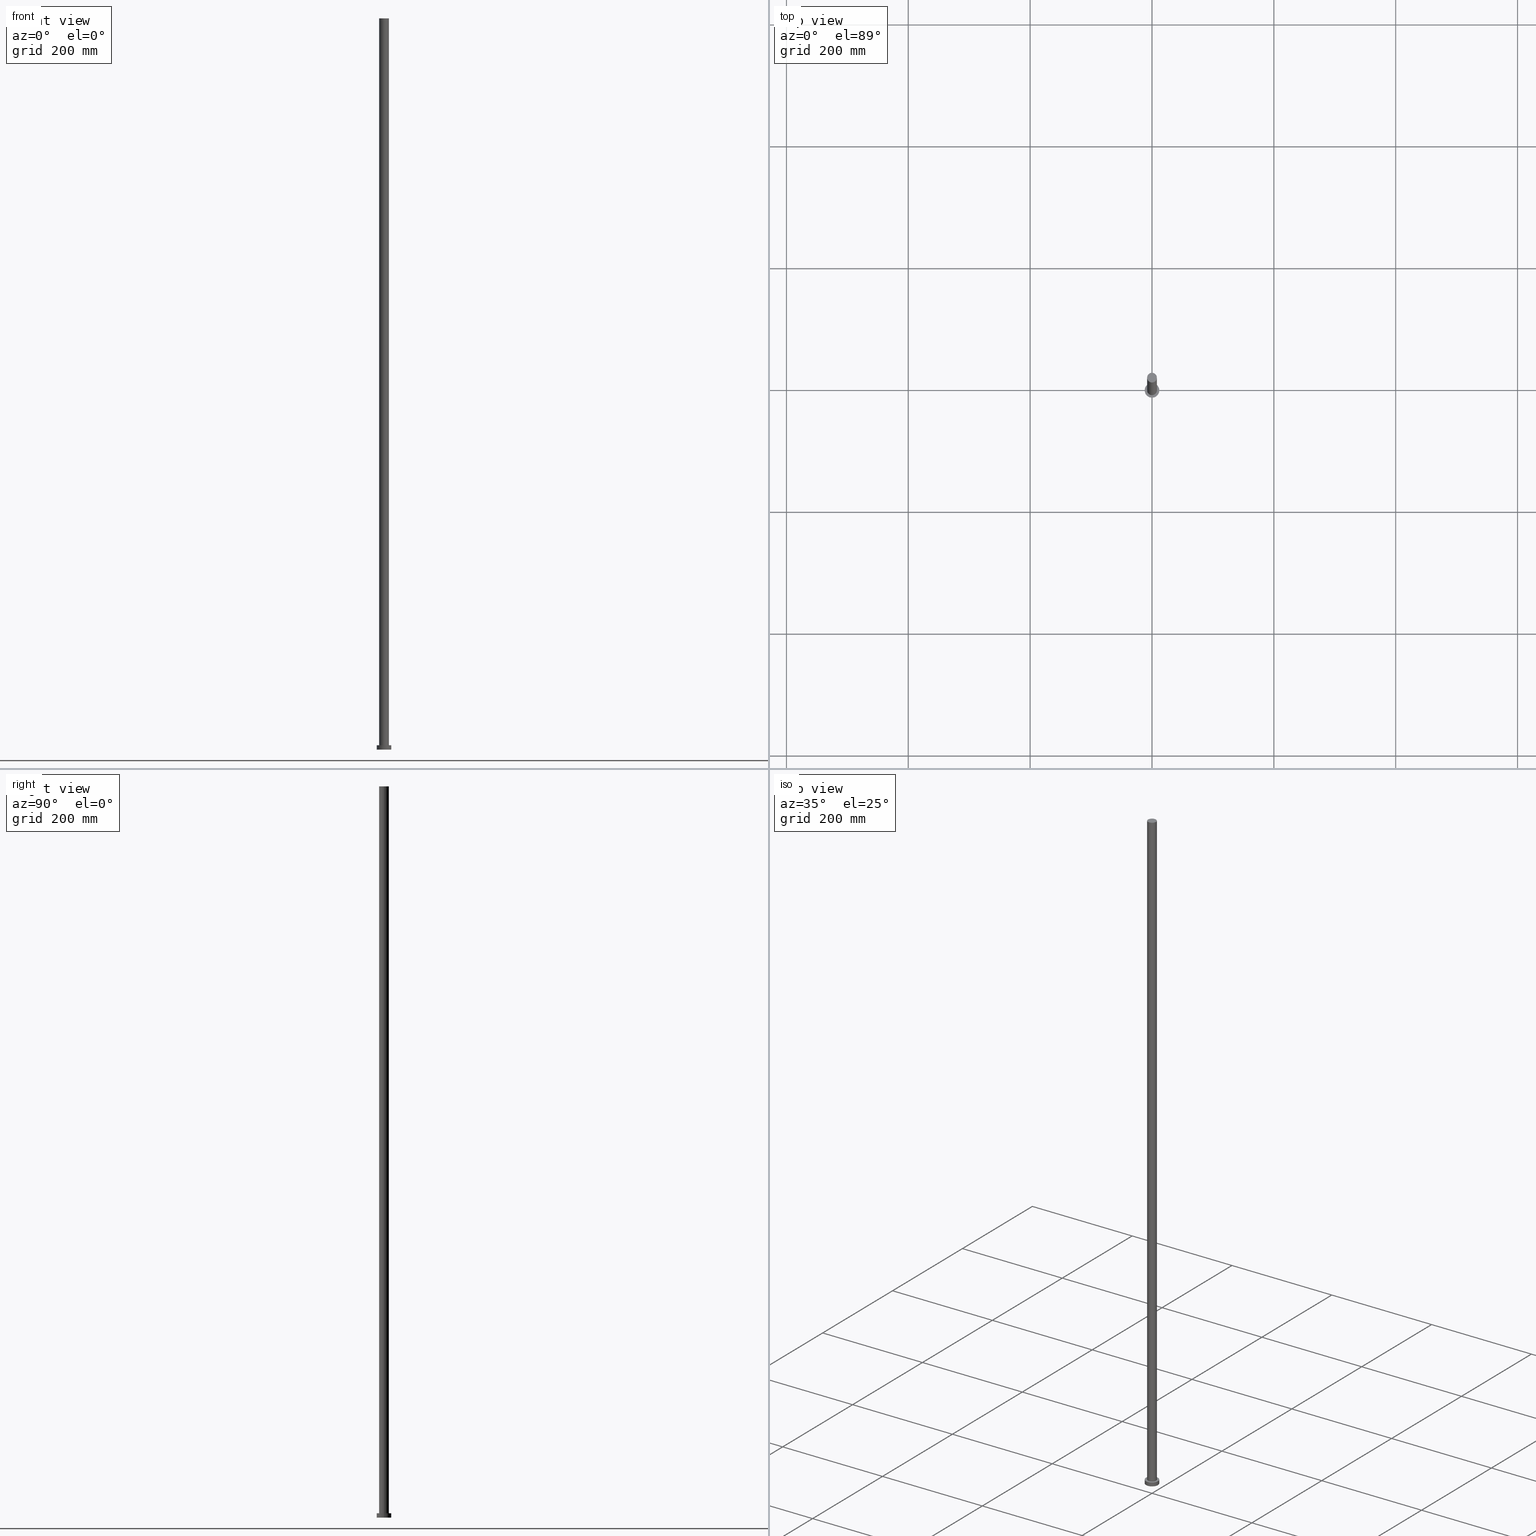
[diagram: canonical four-view strip — front | top / right | iso, engineering-drawing reading convention]
A machine part, canonical four-view strip (front | top / right | iso — engineering-drawing reading convention). The complete STEP part file that produces these views, byte-faithful:
ISO-10303-21;
HEADER;
FILE_DESCRIPTION (( 'STEP AP203' ),
    '1' );
FILE_NAME ('0993.STEP',
    '2023-02-13T09:42:33',
    ( '' ),
    ( '' ),
    'SwSTEP 2.0',
    'SolidWorks 2019',
    '' );
FILE_SCHEMA (( 'CONFIG_CONTROL_DESIGN' ));
ENDSEC;

DATA;
#1 = CARTESIAN_POINT ( 'NONE',  ( -8.000000000000000000, 0.000000000000000000, 1200.000000000000000 ) ) ;
#2 = EDGE_LOOP ( 'NONE', ( #215, #232, #54, #81 ) ) ;
#3 = DIRECTION ( 'NONE',  ( -0.000000000000000000, -0.000000000000000000, -1.000000000000000000 ) ) ;
#4 = ORIENTED_EDGE ( 'NONE', *, *, #116, .T. ) ;
#5 = CIRCLE ( 'NONE', #88, 8.000000000000000000 ) ;
#6 = APPROVAL_STATUS ( 'not_yet_approved' ) ;
#7 = DIRECTION ( 'NONE',  ( 1.000000000000000000, 0.000000000000000000, 0.000000000000000000 ) ) ;
#8 = DATE_AND_TIME ( #162, #114 ) ;
#9 = CYLINDRICAL_SURFACE ( 'NONE', #239, 8.000000000000000000 ) ;
#10 = ORIENTED_EDGE ( 'NONE', *, *, #216, .F. ) ;
#11 = CALENDAR_DATE ( 2023, 13, 2 ) ;
#12 = DATE_TIME_ROLE ( 'classification_date' ) ;
#13 = DIRECTION ( 'NONE',  ( 0.000000000000000000, 0.000000000000000000, 1.000000000000000000 ) ) ;
#14 = DATE_AND_TIME ( #11, #167 ) ;
#15 = CLOSED_SHELL ( 'NONE', ( #24, #78, #50, #38, #107, #119, #197 ) ) ;
#16 = CC_DESIGN_APPROVAL ( #93, ( #234 ) ) ;
#17 = DIRECTION ( 'NONE',  ( 0.000000000000000000, 0.000000000000000000, 1.000000000000000000 ) ) ;
#18 = CYLINDRICAL_SURFACE ( 'NONE', #84, 12.00000000000000178 ) ;
#19 = ORIENTED_EDGE ( 'NONE', *, *, #179, .F. ) ;
#20 = FACE_OUTER_BOUND ( 'NONE', #154, .T. ) ;
#21 = VERTEX_POINT ( 'NONE', #220 ) ;
#22 = DESIGN_CONTEXT ( 'detailed design', #238, 'design' ) ;
#23 = ORIENTED_EDGE ( 'NONE', *, *, #113, .T. ) ;
#24 = ADVANCED_FACE ( 'NONE', ( #176 ), #52, .T. ) ;
#25 = AXIS2_PLACEMENT_3D ( 'NONE', #190, #148, #224 ) ;
#26 = ORIENTED_EDGE ( 'NONE', *, *, #104, .T. ) ;
#27 = EDGE_CURVE ( 'NONE', #65, #172, #160, .T. ) ;
#28 = DIRECTION ( 'NONE',  ( 0.000000000000000000, 0.000000000000000000, 1.000000000000000000 ) ) ;
#29 = AXIS2_PLACEMENT_3D ( 'NONE', #199, #3, #86 ) ;
#30 = PERSON_AND_ORGANIZATION ( #123, #229 ) ;
#31 = DIRECTION ( 'NONE',  ( 1.000000000000000000, 0.000000000000000000, 0.000000000000000000 ) ) ;
#32 = LINE ( 'NONE', #126, #120 ) ;
#33 = MANIFOLD_SOLID_BREP ( 'P�idat vysunut�m3', #15 ) ;
#34 = FACE_OUTER_BOUND ( 'NONE', #195, .T. ) ;
#35 = DATE_TIME_ROLE ( 'creation_date' ) ;
#36 = LINE ( 'NONE', #110, #252 ) ;
#37 = DIRECTION ( 'NONE',  ( 1.000000000000000000, 0.000000000000000000, 0.000000000000000000 ) ) ;
#38 = ADVANCED_FACE ( 'NONE', ( #70, #159 ), #144, .T. ) ;
#39 = VECTOR ( 'NONE', #204, 1000.000000000000000 ) ;
#40 = PRODUCT_DEFINITION_FORMATION_WITH_SPECIFIED_SOURCE ( 'LIBOVOLN�', '', #165, .NOT_KNOWN. ) ;
#41 = DIRECTION ( 'NONE',  ( 1.000000000000000000, 0.000000000000000000, 0.000000000000000000 ) ) ;
#42 = CC_DESIGN_APPROVAL ( #235, ( #40 ) ) ;
#43 = VERTEX_POINT ( 'NONE', #185 ) ;
#44 = CC_DESIGN_SECURITY_CLASSIFICATION ( #49, ( #40 ) ) ;
#45 = EDGE_LOOP ( 'NONE', ( #241, #175, #218, #198 ) ) ;
#46 = ORIENTED_EDGE ( 'NONE', *, *, #27, .F. ) ;
#47 = DIRECTION ( 'NONE',  ( 0.000000000000000000, 0.000000000000000000, 1.000000000000000000 ) ) ;
#48 = AXIS2_PLACEMENT_3D ( 'NONE', #91, #97, #248 ) ;
#49 = SECURITY_CLASSIFICATION ( '', '', #245 ) ;
#50 = ADVANCED_FACE ( 'NONE', ( #191 ), #18, .T. ) ;
#51 = MECHANICAL_CONTEXT ( 'NONE', #102, 'mechanical' ) ;
#52 = CYLINDRICAL_SURFACE ( 'NONE', #227, 8.000000000000000000 ) ;
#53 = CARTESIAN_POINT ( 'NONE',  ( 12.00000000000000178, 1.469576158976824144E-15, 7.000000000000000000 ) ) ;
#54 = ORIENTED_EDGE ( 'NONE', *, *, #216, .T. ) ;
#55 = APPROVAL_ROLE ( '' ) ;
#56 = DIRECTION ( 'NONE',  ( -1.000000000000000000, 0.000000000000000000, 0.000000000000000000 ) ) ;
#57 = DATE_AND_TIME ( #147, #134 ) ;
#58 = AXIS2_PLACEMENT_3D ( 'NONE', #112, #193, #75 ) ;
#59 = AXIS2_PLACEMENT_3D ( 'NONE', #254, #17, #170 ) ;
#60 = PERSON_AND_ORGANIZATION ( #123, #229 ) ;
#61 = APPROVAL ( #96, 'NEUR�EN�' ) ;
#62 = CARTESIAN_POINT ( 'NONE',  ( 12.00000000000000178, 1.469576158976824144E-15, 0.000000000000000000 ) ) ;
#63 = VERTEX_POINT ( 'NONE', #211 ) ;
#64 = EDGE_CURVE ( 'NONE', #43, #172, #36, .T. ) ;
#65 = VERTEX_POINT ( 'NONE', #208 ) ;
#66 = CIRCLE ( 'NONE', #237, 8.000000000000000000 ) ;
#67 = CC_DESIGN_PERSON_AND_ORGANIZATION_ASSIGNMENT ( #221, #180, ( #165 ) ) ;
#68 = EDGE_CURVE ( 'NONE', #201, #178, #181, .T. ) ;
#69 = CIRCLE ( 'NONE', #242, 12.00000000000000178 ) ;
#70 = FACE_BOUND ( 'NONE', #149, .T. ) ;
#71 = APPROVAL_DATE_TIME ( #186, #235 ) ;
#72 = CC_DESIGN_PERSON_AND_ORGANIZATION_ASSIGNMENT ( #212, #124, ( #234 ) ) ;
#73 = DIRECTION ( 'NONE',  ( -1.000000000000000000, 0.000000000000000000, 0.000000000000000000 ) ) ;
#74 = CIRCLE ( 'NONE', #156, 12.00000000000000178 ) ;
#75 = DIRECTION ( 'NONE',  ( 1.000000000000000000, 0.000000000000000000, -0.000000000000000000 ) ) ;
#76 = PERSON_AND_ORGANIZATION ( #123, #229 ) ;
#77 = CARTESIAN_POINT ( 'NONE',  ( 0.000000000000000000, 0.000000000000000000, 7.000000000000000000 ) ) ;
#78 = ADVANCED_FACE ( 'NONE', ( #139 ), #137, .T. ) ;
#79 = DIRECTION ( 'NONE',  ( 1.000000000000000000, 0.000000000000000000, 0.000000000000000000 ) ) ;
#80 = LINE ( 'NONE', #1, #196 ) ;
#81 = ORIENTED_EDGE ( 'NONE', *, *, #27, .T. ) ;
#82 =( NAMED_UNIT ( * ) SI_UNIT ( $, .STERADIAN. ) SOLID_ANGLE_UNIT ( ) );
#83 = DIRECTION ( 'NONE',  ( -0.000000000000000000, -0.000000000000000000, -1.000000000000000000 ) ) ;
#84 = AXIS2_PLACEMENT_3D ( 'NONE', #249, #247, #56 ) ;
#85 =( GEOMETRIC_REPRESENTATION_CONTEXT ( 3 ) GLOBAL_UNCERTAINTY_ASSIGNED_CONTEXT ( ( #171 ) ) GLOBAL_UNIT_ASSIGNED_CONTEXT ( ( #194, #151, #82 ) ) REPRESENTATION_CONTEXT ( 'NONE', 'WORKASPACE' ) );
#86 = DIRECTION ( 'NONE',  ( -1.000000000000000000, 0.000000000000000000, 0.000000000000000000 ) ) ;
#87 = DIRECTION ( 'NONE',  ( 1.000000000000000000, 0.000000000000000000, 0.000000000000000000 ) ) ;
#88 = AXIS2_PLACEMENT_3D ( 'NONE', #133, #213, #41 ) ;
#89 = PRODUCT_RELATED_PRODUCT_CATEGORY ( 'detail', '', ( #165 ) ) ;
#90 = COORDINATED_UNIVERSAL_TIME_OFFSET ( 1, 0, .AHEAD. ) ;
#91 = CARTESIAN_POINT ( 'NONE',  ( 0.000000000000000000, 0.000000000000000000, 7.000000000000000000 ) ) ;
#92 = CARTESIAN_POINT ( 'NONE',  ( 0.000000000000000000, 0.000000000000000000, 0.000000000000000000 ) ) ;
#93 = APPROVAL ( #6, 'NEUR�EN�' ) ;
#94 = APPROVAL_DATE_TIME ( #130, #61 ) ;
#95 = DIRECTION ( 'NONE',  ( 0.000000000000000000, 0.000000000000000000, 1.000000000000000000 ) ) ;
#96 = APPROVAL_STATUS ( 'not_yet_approved' ) ;
#97 = DIRECTION ( 'NONE',  ( 0.000000000000000000, 0.000000000000000000, 1.000000000000000000 ) ) ;
#98 = ADVANCED_BREP_SHAPE_REPRESENTATION ( '0993', ( #33, #203 ), #85 ) ;
#99 = CARTESIAN_POINT ( 'NONE',  ( 12.00000000000000178, 1.469576158976824144E-15, 7.000000000000000000 ) ) ;
#100 = EDGE_LOOP ( 'NONE', ( #103, #142, #177, #10 ) ) ;
#101 = DIRECTION ( 'NONE',  ( 1.000000000000000000, 0.000000000000000000, 0.000000000000000000 ) ) ;
#102 = APPLICATION_CONTEXT ( 'configuration controlled 3d designs of mechanical parts and assemblies' ) ;
#103 = ORIENTED_EDGE ( 'NONE', *, *, #243, .F. ) ;
#104 = EDGE_CURVE ( 'NONE', #117, #43, #66, .T. ) ;
#105 = PERSON_AND_ORGANIZATION ( #123, #229 ) ;
#106 = APPROVAL_ROLE ( '' ) ;
#107 = ADVANCED_FACE ( 'NONE', ( #34 ), #111, .F. ) ;
#108 = AXIS2_PLACEMENT_3D ( 'NONE', #92, #95, #31 ) ;
#109 = CALENDAR_DATE ( 2023, 13, 2 ) ;
#110 = CARTESIAN_POINT ( 'NONE',  ( 8.000000000000000000, 9.797174393178825657E-16, 1200.000000000000000 ) ) ;
#111 = PLANE ( 'NONE',  #25 ) ;
#112 = CARTESIAN_POINT ( 'NONE',  ( 0.000000000000000000, 0.000000000000000000, 7.000000000000000000 ) ) ;
#113 = EDGE_CURVE ( 'NONE', #21, #63, #32, .T. ) ;
#114 = LOCAL_TIME ( 10, 42, 33.00000000000000000, #225 ) ;
#115 = ORIENTED_EDGE ( 'NONE', *, *, #173, .F. ) ;
#116 = EDGE_CURVE ( 'NONE', #63, #178, #118, .T. ) ;
#117 = VERTEX_POINT ( 'NONE', #129 ) ;
#118 = CIRCLE ( 'NONE', #108, 12.00000000000000178 ) ;
#119 = ADVANCED_FACE ( 'NONE', ( #163 ), #9, .T. ) ;
#120 = VECTOR ( 'NONE', #246, 1000.000000000000000 ) ;
#121 = CARTESIAN_POINT ( 'NONE',  ( 0.000000000000000000, 0.000000000000000000, 1200.000000000000000 ) ) ;
#122 = ORIENTED_EDGE ( 'NONE', *, *, #116, .F. ) ;
#123 = PERSON ( 'NEUR�EN�', 'NEUR�EN�', 'NEUR�EN�', ('NEUR�EN�'), ('NEUR�EN�'), ('NEUR�EN�') ) ;
#124 = PERSON_AND_ORGANIZATION_ROLE ( 'creator' ) ;
#125 = APPROVAL_PERSON_ORGANIZATION ( #105, #93, #228 ) ;
#126 = CARTESIAN_POINT ( 'NONE',  ( -12.00000000000000178, 0.000000000000000000, 7.000000000000000000 ) ) ;
#127 = DIRECTION ( 'NONE',  ( -0.000000000000000000, -0.000000000000000000, -1.000000000000000000 ) ) ;
#128 = APPLICATION_PROTOCOL_DEFINITION ( 'international standard', 'config_control_design', 1994, #238 ) ;
#129 = CARTESIAN_POINT ( 'NONE',  ( -8.000000000000000000, 0.000000000000000000, 1200.000000000000000 ) ) ;
#130 = DATE_AND_TIME ( #189, #184 ) ;
#131 = ORIENTED_EDGE ( 'NONE', *, *, #174, .F. ) ;
#132 = CARTESIAN_POINT ( 'NONE',  ( 0.000000000000000000, 0.000000000000000000, 1200.000000000000000 ) ) ;
#133 = CARTESIAN_POINT ( 'NONE',  ( 0.000000000000000000, 0.000000000000000000, 1200.000000000000000 ) ) ;
#134 = LOCAL_TIME ( 10, 42, 33.00000000000000000, #209 ) ;
#135 = PLANE ( 'NONE',  #59 ) ;
#136 = ORIENTED_EDGE ( 'NONE', *, *, #243, .T. ) ;
#137 = CYLINDRICAL_SURFACE ( 'NONE', #29, 12.00000000000000178 ) ;
#138 = DIRECTION ( 'NONE',  ( -1.000000000000000000, 0.000000000000000000, 0.000000000000000000 ) ) ;
#139 = FACE_OUTER_BOUND ( 'NONE', #45, .T. ) ;
#140 = APPLICATION_PROTOCOL_DEFINITION ( 'international standard', 'config_control_design', 1994, #102 ) ;
#141 = APPROVAL_PERSON_ORGANIZATION ( #183, #61, #55 ) ;
#142 = ORIENTED_EDGE ( 'NONE', *, *, #64, .T. ) ;
#143 = APPROVAL_STATUS ( 'not_yet_approved' ) ;
#144 = PLANE ( 'NONE',  #58 ) ;
#145 = PERSON_AND_ORGANIZATION_ROLE ( 'design_supplier' ) ;
#146 = PERSON_AND_ORGANIZATION ( #123, #229 ) ;
#147 = CALENDAR_DATE ( 2023, 13, 2 ) ;
#148 = DIRECTION ( 'NONE',  ( 0.000000000000000000, 0.000000000000000000, 1.000000000000000000 ) ) ;
#149 = EDGE_LOOP ( 'NONE', ( #46, #115 ) ) ;
#150 = EDGE_CURVE ( 'NONE', #201, #21, #168, .T. ) ;
#151 =( NAMED_UNIT ( * ) PLANE_ANGLE_UNIT ( ) SI_UNIT ( $, .RADIAN. ) );
#152 = LOCAL_TIME ( 10, 42, 33.00000000000000000, #90 ) ;
#153 = CC_DESIGN_PERSON_AND_ORGANIZATION_ASSIGNMENT ( #76, #222, ( #49 ) ) ;
#154 = EDGE_LOOP ( 'NONE', ( #26, #136 ) ) ;
#155 = CC_DESIGN_DATE_AND_TIME_ASSIGNMENT ( #14, #12, ( #49 ) ) ;
#156 = AXIS2_PLACEMENT_3D ( 'NONE', #236, #192, #101 ) ;
#157 = ORIENTED_EDGE ( 'NONE', *, *, #150, .T. ) ;
#158 = SHAPE_DEFINITION_REPRESENTATION ( #206, #98 ) ;
#159 = FACE_OUTER_BOUND ( 'NONE', #214, .T. ) ;
#160 = CIRCLE ( 'NONE', #182, 8.000000000000000000 ) ;
#161 = COORDINATED_UNIVERSAL_TIME_OFFSET ( 1, 0, .AHEAD. ) ;
#162 = CALENDAR_DATE ( 2023, 13, 2 ) ;
#163 = FACE_OUTER_BOUND ( 'NONE', #2, .T. ) ;
#164 = PERSON_AND_ORGANIZATION_ROLE ( 'creator' ) ;
#165 = PRODUCT ( '0993', '0993', '', ( #51 ) ) ;
#166 = CC_DESIGN_PERSON_AND_ORGANIZATION_ASSIGNMENT ( #30, #145, ( #40 ) ) ;
#167 = LOCAL_TIME ( 10, 42, 33.00000000000000000, #161 ) ;
#168 = CIRCLE ( 'NONE', #48, 12.00000000000000178 ) ;
#169 = EDGE_LOOP ( 'NONE', ( #205, #19, #23, #4 ) ) ;
#170 = DIRECTION ( 'NONE',  ( 1.000000000000000000, 0.000000000000000000, -0.000000000000000000 ) ) ;
#171 = UNCERTAINTY_MEASURE_WITH_UNIT (LENGTH_MEASURE( 1.000000000000000082E-05 ), #194, 'distance_accuracy_value', 'NONE');
#172 = VERTEX_POINT ( 'NONE', #250 ) ;
#173 = EDGE_CURVE ( 'NONE', #172, #65, #219, .T. ) ;
#174 = EDGE_CURVE ( 'NONE', #178, #63, #69, .T. ) ;
#175 = ORIENTED_EDGE ( 'NONE', *, *, #68, .T. ) ;
#176 = FACE_OUTER_BOUND ( 'NONE', #100, .T. ) ;
#177 = ORIENTED_EDGE ( 'NONE', *, *, #173, .T. ) ;
#178 = VERTEX_POINT ( 'NONE', #62 ) ;
#179 = EDGE_CURVE ( 'NONE', #21, #201, #74, .T. ) ;
#180 = PERSON_AND_ORGANIZATION_ROLE ( 'design_owner' ) ;
#181 = LINE ( 'NONE', #53, #39 ) ;
#182 = AXIS2_PLACEMENT_3D ( 'NONE', #244, #28, #7 ) ;
#183 = PERSON_AND_ORGANIZATION ( #123, #229 ) ;
#184 = LOCAL_TIME ( 10, 42, 33.00000000000000000, #207 ) ;
#185 = CARTESIAN_POINT ( 'NONE',  ( 8.000000000000000000, 9.797174393178825657E-16, 1200.000000000000000 ) ) ;
#186 = DATE_AND_TIME ( #109, #152 ) ;
#187 = DIRECTION ( 'NONE',  ( 0.000000000000000000, 0.000000000000000000, 1.000000000000000000 ) ) ;
#188 = CC_DESIGN_PERSON_AND_ORGANIZATION_ASSIGNMENT ( #146, #164, ( #40 ) ) ;
#189 = CALENDAR_DATE ( 2023, 13, 2 ) ;
#190 = CARTESIAN_POINT ( 'NONE',  ( 0.000000000000000000, 0.000000000000000000, 0.000000000000000000 ) ) ;
#191 = FACE_OUTER_BOUND ( 'NONE', #169, .T. ) ;
#192 = DIRECTION ( 'NONE',  ( 0.000000000000000000, 0.000000000000000000, 1.000000000000000000 ) ) ;
#193 = DIRECTION ( 'NONE',  ( 0.000000000000000000, 0.000000000000000000, 1.000000000000000000 ) ) ;
#194 =( LENGTH_UNIT ( ) NAMED_UNIT ( * ) SI_UNIT ( .MILLI., .METRE. ) );
#195 = EDGE_LOOP ( 'NONE', ( #122, #131 ) ) ;
#196 = VECTOR ( 'NONE', #83, 1000.000000000000000 ) ;
#197 = ADVANCED_FACE ( 'NONE', ( #20 ), #135, .T. ) ;
#198 = ORIENTED_EDGE ( 'NONE', *, *, #113, .F. ) ;
#199 = CARTESIAN_POINT ( 'NONE',  ( 0.000000000000000000, 0.000000000000000000, 7.000000000000000000 ) ) ;
#200 = CC_DESIGN_DATE_AND_TIME_ASSIGNMENT ( #57, #35, ( #234 ) ) ;
#201 = VERTEX_POINT ( 'NONE', #99 ) ;
#202 = DIRECTION ( 'NONE',  ( -0.000000000000000000, -0.000000000000000000, -1.000000000000000000 ) ) ;
#203 = AXIS2_PLACEMENT_3D ( 'NONE', #240, #47, #87 ) ;
#204 = DIRECTION ( 'NONE',  ( -0.000000000000000000, -0.000000000000000000, -1.000000000000000000 ) ) ;
#205 = ORIENTED_EDGE ( 'NONE', *, *, #68, .F. ) ;
#206 = PRODUCT_DEFINITION_SHAPE ( 'NONE', 'NONE',  #234 ) ;
#207 = COORDINATED_UNIVERSAL_TIME_OFFSET ( 1, 0, .AHEAD. ) ;
#208 = CARTESIAN_POINT ( 'NONE',  ( -8.000000000000000000, 0.000000000000000000, 7.000000000000000000 ) ) ;
#209 = COORDINATED_UNIVERSAL_TIME_OFFSET ( 1, 0, .AHEAD. ) ;
#210 = CARTESIAN_POINT ( 'NONE',  ( 0.000000000000000000, 0.000000000000000000, 0.000000000000000000 ) ) ;
#211 = CARTESIAN_POINT ( 'NONE',  ( -12.00000000000000178, 0.000000000000000000, 0.000000000000000000 ) ) ;
#212 = PERSON_AND_ORGANIZATION ( #123, #229 ) ;
#213 = DIRECTION ( 'NONE',  ( 0.000000000000000000, 0.000000000000000000, 1.000000000000000000 ) ) ;
#214 = EDGE_LOOP ( 'NONE', ( #255, #157 ) ) ;
#215 = ORIENTED_EDGE ( 'NONE', *, *, #64, .F. ) ;
#216 = EDGE_CURVE ( 'NONE', #117, #65, #80, .T. ) ;
#217 = APPROVAL_PERSON_ORGANIZATION ( #60, #235, #106 ) ;
#218 = ORIENTED_EDGE ( 'NONE', *, *, #174, .T. ) ;
#219 = CIRCLE ( 'NONE', #253, 8.000000000000000000 ) ;
#220 = CARTESIAN_POINT ( 'NONE',  ( -12.00000000000000178, 0.000000000000000000, 7.000000000000000000 ) ) ;
#221 = PERSON_AND_ORGANIZATION ( #123, #229 ) ;
#222 = PERSON_AND_ORGANIZATION_ROLE ( 'classification_officer' ) ;
#223 = APPROVAL_DATE_TIME ( #8, #93 ) ;
#224 = DIRECTION ( 'NONE',  ( 1.000000000000000000, 0.000000000000000000, -0.000000000000000000 ) ) ;
#225 = COORDINATED_UNIVERSAL_TIME_OFFSET ( 1, 0, .AHEAD. ) ;
#226 = DIRECTION ( 'NONE',  ( 0.000000000000000000, 0.000000000000000000, 1.000000000000000000 ) ) ;
#227 = AXIS2_PLACEMENT_3D ( 'NONE', #121, #202, #138 ) ;
#228 = APPROVAL_ROLE ( '' ) ;
#229 = ORGANIZATION ( 'NEUR�EN�', 'NEUR�EN�', '' ) ;
#230 = DIRECTION ( 'NONE',  ( 1.000000000000000000, 0.000000000000000000, 0.000000000000000000 ) ) ;
#231 = CC_DESIGN_APPROVAL ( #61, ( #49 ) ) ;
#232 = ORIENTED_EDGE ( 'NONE', *, *, #104, .F. ) ;
#233 = DIRECTION ( 'NONE',  ( -0.000000000000000000, -0.000000000000000000, -1.000000000000000000 ) ) ;
#234 = PRODUCT_DEFINITION ( 'NEZN�M�', '', #40, #22 ) ;
#235 = APPROVAL ( #143, 'NEUR�EN�' ) ;
#236 = CARTESIAN_POINT ( 'NONE',  ( 0.000000000000000000, 0.000000000000000000, 7.000000000000000000 ) ) ;
#237 = AXIS2_PLACEMENT_3D ( 'NONE', #251, #187, #37 ) ;
#238 = APPLICATION_CONTEXT ( 'configuration controlled 3d designs of mechanical parts and assemblies' ) ;
#239 = AXIS2_PLACEMENT_3D ( 'NONE', #132, #233, #73 ) ;
#240 = CARTESIAN_POINT ( 'NONE',  ( 0.000000000000000000, 0.000000000000000000, 0.000000000000000000 ) ) ;
#241 = ORIENTED_EDGE ( 'NONE', *, *, #150, .F. ) ;
#242 = AXIS2_PLACEMENT_3D ( 'NONE', #210, #13, #79 ) ;
#243 = EDGE_CURVE ( 'NONE', #43, #117, #5, .T. ) ;
#244 = CARTESIAN_POINT ( 'NONE',  ( 0.000000000000000000, 0.000000000000000000, 7.000000000000000000 ) ) ;
#245 = SECURITY_CLASSIFICATION_LEVEL ( 'unclassified' ) ;
#246 = DIRECTION ( 'NONE',  ( -0.000000000000000000, -0.000000000000000000, -1.000000000000000000 ) ) ;
#247 = DIRECTION ( 'NONE',  ( -0.000000000000000000, -0.000000000000000000, -1.000000000000000000 ) ) ;
#248 = DIRECTION ( 'NONE',  ( 1.000000000000000000, 0.000000000000000000, 0.000000000000000000 ) ) ;
#249 = CARTESIAN_POINT ( 'NONE',  ( 0.000000000000000000, 0.000000000000000000, 7.000000000000000000 ) ) ;
#250 = CARTESIAN_POINT ( 'NONE',  ( 8.000000000000000000, 9.797174393178825657E-16, 7.000000000000000000 ) ) ;
#251 = CARTESIAN_POINT ( 'NONE',  ( 0.000000000000000000, 0.000000000000000000, 1200.000000000000000 ) ) ;
#252 = VECTOR ( 'NONE', #127, 1000.000000000000000 ) ;
#253 = AXIS2_PLACEMENT_3D ( 'NONE', #77, #226, #230 ) ;
#254 = CARTESIAN_POINT ( 'NONE',  ( 0.000000000000000000, 0.000000000000000000, 1200.000000000000000 ) ) ;
#255 = ORIENTED_EDGE ( 'NONE', *, *, #179, .T. ) ;
ENDSEC;
END-ISO-10303-21;
